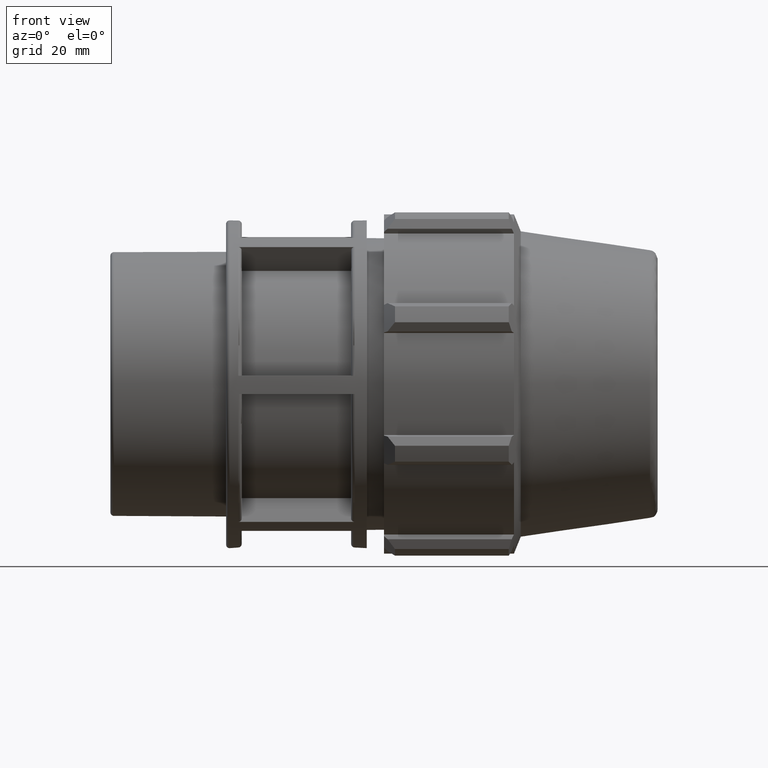
[diagram: clean part render]
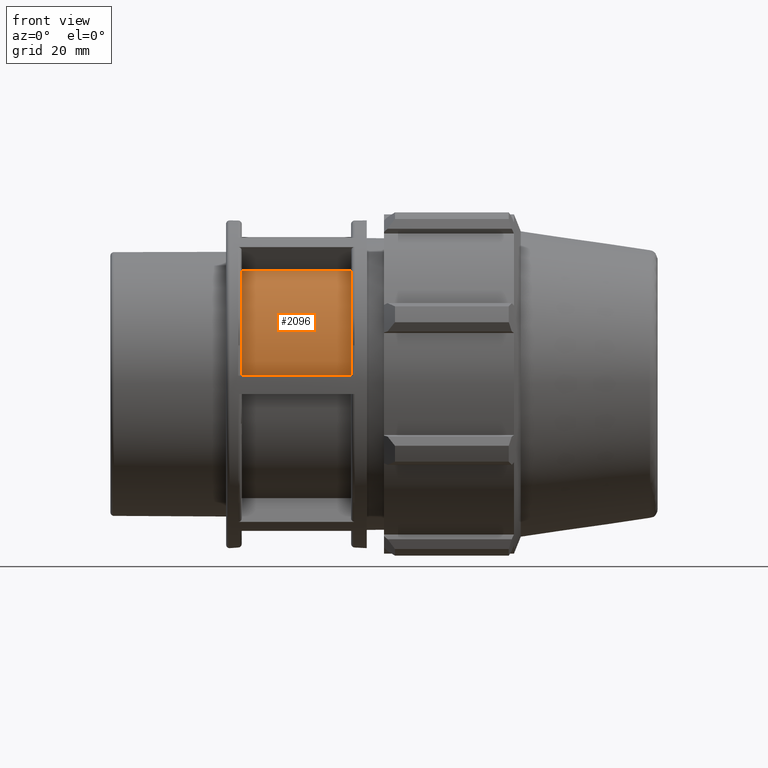
[diagram: same view with one face highlighted and labeled with its STEP entity id]
A machine part, front view. The second image highlights one B-rep face of the part: STEP entity #2096.
In plain terms, the highlighted cylindrical surface (partial cylindrical patch) has radius 30.75 mm, axis along (1, 0, 0).
Its self-contained STEP definition (entity closure, byte-faithful):
#92=LINE('',#3368,#236);
#95=LINE('',#3373,#239);
#236=VECTOR('',#2555,24.6);
#239=VECTOR('',#2560,24.6);
#374=CYLINDRICAL_SURFACE('',#2257,30.75);
#526=FACE_OUTER_BOUND('',#655,.T.);
#655=EDGE_LOOP('',(#1530,#1531,#1532,#1533));
#775=CIRCLE('',#2223,30.75);
#783=CIRCLE('',#2250,30.75);
#894=VERTEX_POINT('',#3277);
#895=VERTEX_POINT('',#3279);
#910=VERTEX_POINT('',#3367);
#911=VERTEX_POINT('',#3371);
#1110=EDGE_CURVE('',#894,#895,#775,.T.);
#1135=EDGE_CURVE('',#910,#895,#92,.T.);
#1138=EDGE_CURVE('',#894,#911,#95,.T.);
#1148=EDGE_CURVE('',#911,#910,#783,.T.);
#1530=ORIENTED_EDGE('',*,*,#1135,.T.);
#1531=ORIENTED_EDGE('',*,*,#1110,.F.);
#1532=ORIENTED_EDGE('',*,*,#1138,.T.);
#1533=ORIENTED_EDGE('',*,*,#1148,.T.);
#2096=ADVANCED_FACE('',(#526),#374,.T.);
#2223=AXIS2_PLACEMENT_3D('',#3280,#2504,#2505);
#2250=AXIS2_PLACEMENT_3D('',#3393,#2584,#2585);
#2257=AXIS2_PLACEMENT_3D('',#3401,#2599,#2600);
#2504=DIRECTION('center_axis',(1.,0.,0.));
#2505=DIRECTION('ref_axis',(0.,0.,-1.));
#2555=DIRECTION('',(1.,0.,0.));
#2560=DIRECTION('',(-1.,0.,0.));
#2584=DIRECTION('center_axis',(1.,0.,0.));
#2585=DIRECTION('ref_axis',(0.,0.,-1.));
#2599=DIRECTION('center_axis',(1.,0.,0.));
#2600=DIRECTION('ref_axis',(0.,1.,0.));
#3277=CARTESIAN_POINT('',(54.1142857142857,-17.2766029175754,25.4377965167667));
#3279=CARTESIAN_POINT('',(54.1142857142857,-30.6938812062919,1.85692124066671));
#3280=CARTESIAN_POINT('Origin',(54.1142857142857,0.,0.));
#3367=CARTESIAN_POINT('',(29.5142857142857,-30.6938812062919,1.85692124066671));
#3368=CARTESIAN_POINT('',(41.8142857142857,-30.6938812062919,1.85692124066671));
#3371=CARTESIAN_POINT('',(29.5142857142857,-17.2766029175754,25.4377965167667));
#3373=CARTESIAN_POINT('',(41.8142857142857,-17.2766029175754,25.4377965167667));
#3393=CARTESIAN_POINT('Origin',(29.5142857142857,0.,0.));
#3401=CARTESIAN_POINT('Origin',(41.8142857142857,0.,0.));